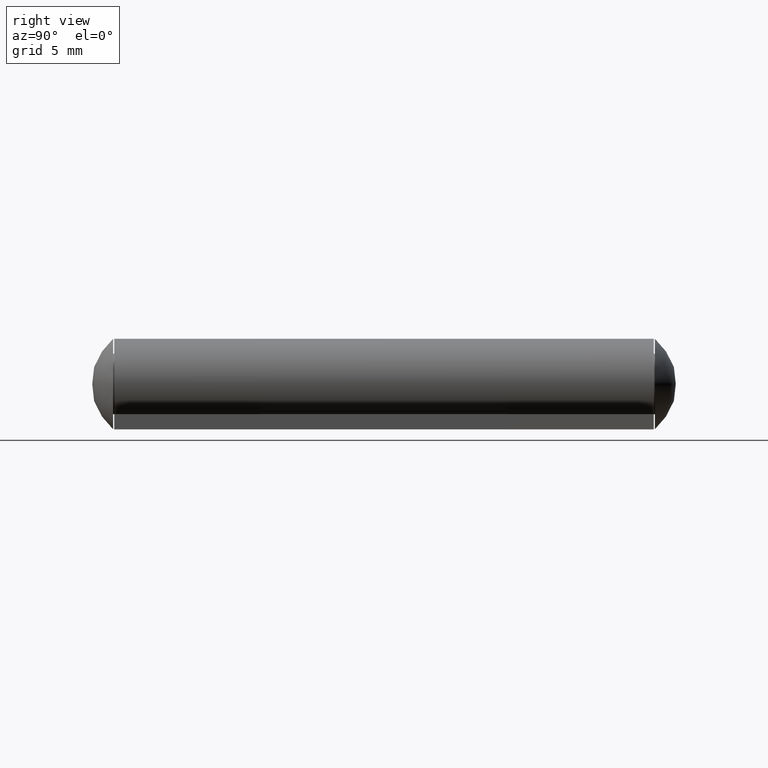
[diagram: clean part render]
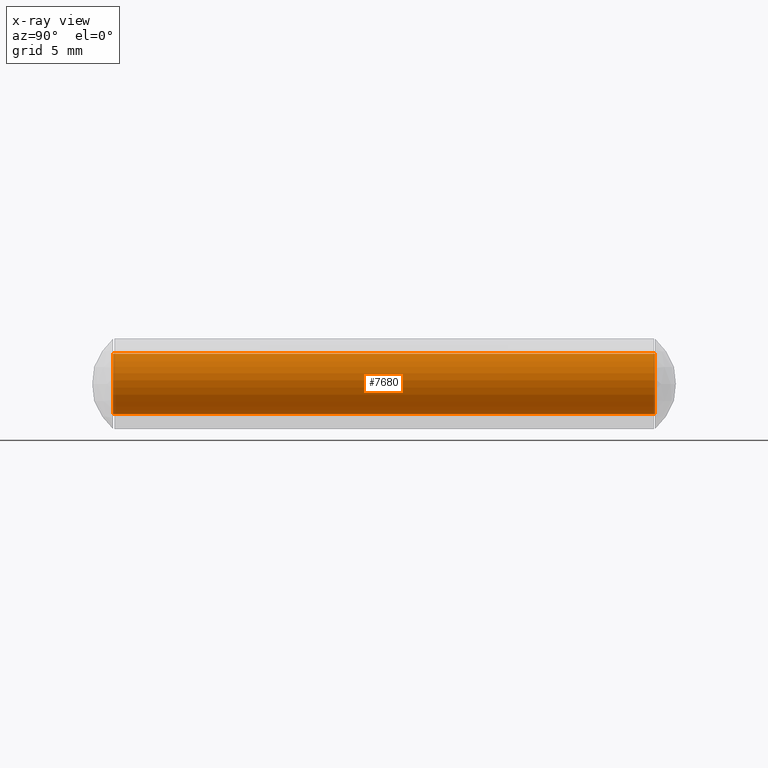
[diagram: x-ray — body ghosted, one internal face saturated and labeled with its STEP entity id]
A machine part, right view, then the same camera in x-ray: the body is ghosted and one INTERNAL B-rep face — a face not visible from any outside direction — is saturated and labeled: STEP entity #7680.
In plain terms, the highlighted cylindrical surface (bore or boss wall) has radius 1.4 mm, axis along (-0, -1, -0).
Its self-contained STEP definition (entity closure, byte-faithful):
#541 = CIRCLE ( 'NONE', #11311, 1.399999999999999689 ) ;
#577 = ORIENTED_EDGE ( 'NONE', *, *, #11304, .F. ) ;
#628 = ORIENTED_EDGE ( 'NONE', *, *, #5549, .T. ) ;
#1481 = DIRECTION ( 'NONE',  ( 0.000000000000000000, 1.000000000000000000, 0.000000000000000000 ) ) ;
#2086 = DIRECTION ( 'NONE',  ( -0.000000000000000000, -1.000000000000000000, -0.000000000000000000 ) ) ;
#2156 = VERTEX_POINT ( 'NONE', #7738 ) ;
#2754 = CYLINDRICAL_SURFACE ( 'NONE', #8148, 1.399999999999999689 ) ;
#3234 = DIRECTION ( 'NONE',  ( 0.000000000000000000, 0.000000000000000000, 1.000000000000000000 ) ) ;
#3358 = DIRECTION ( 'NONE',  ( 0.000000000000000000, 0.000000000000000000, 1.000000000000000000 ) ) ;
#4450 = AXIS2_PLACEMENT_3D ( 'NONE', #8422, #1481, #3234 ) ;
#5175 = CARTESIAN_POINT ( 'NONE',  ( 0.000000000000000000, -12.55000000000000071, 1.399999999999999689 ) ) ;
#5549 = EDGE_CURVE ( 'NONE', #8555, #8555, #541, .T. ) ;
#6275 = CIRCLE ( 'NONE', #4450, 1.399999999999999689 ) ;
#7184 = EDGE_LOOP ( 'NONE', ( #628 ) ) ;
#7680 = ADVANCED_FACE ( 'NONE', ( #10119, #10254 ), #2754, .T. ) ;
#7738 = CARTESIAN_POINT ( 'NONE',  ( 0.000000000000000000, 12.55000000000000071, 1.399999999999999689 ) ) ;
#8148 = AXIS2_PLACEMENT_3D ( 'NONE', #9801, #2086, #10926 ) ;
#8422 = CARTESIAN_POINT ( 'NONE',  ( 0.000000000000000000, 12.55000000000000071, 0.000000000000000000 ) ) ;
#8555 = VERTEX_POINT ( 'NONE', #5175 ) ;
#9374 = CARTESIAN_POINT ( 'NONE',  ( 0.000000000000000000, -12.55000000000000071, 0.000000000000000000 ) ) ;
#9801 = CARTESIAN_POINT ( 'NONE',  ( 0.000000000000000000, 12.55000000000000071, 0.000000000000000000 ) ) ;
#9929 = EDGE_LOOP ( 'NONE', ( #577 ) ) ;
#10081 = DIRECTION ( 'NONE',  ( -0.000000000000000000, 1.000000000000000000, -0.000000000000000000 ) ) ;
#10119 = FACE_OUTER_BOUND ( 'NONE', #9929, .T. ) ;
#10254 = FACE_OUTER_BOUND ( 'NONE', #7184, .T. ) ;
#10926 = DIRECTION ( 'NONE',  ( 0.000000000000000000, 0.000000000000000000, -1.000000000000000000 ) ) ;
#11304 = EDGE_CURVE ( 'NONE', #2156, #2156, #6275, .T. ) ;
#11311 = AXIS2_PLACEMENT_3D ( 'NONE', #9374, #10081, #3358 ) ;